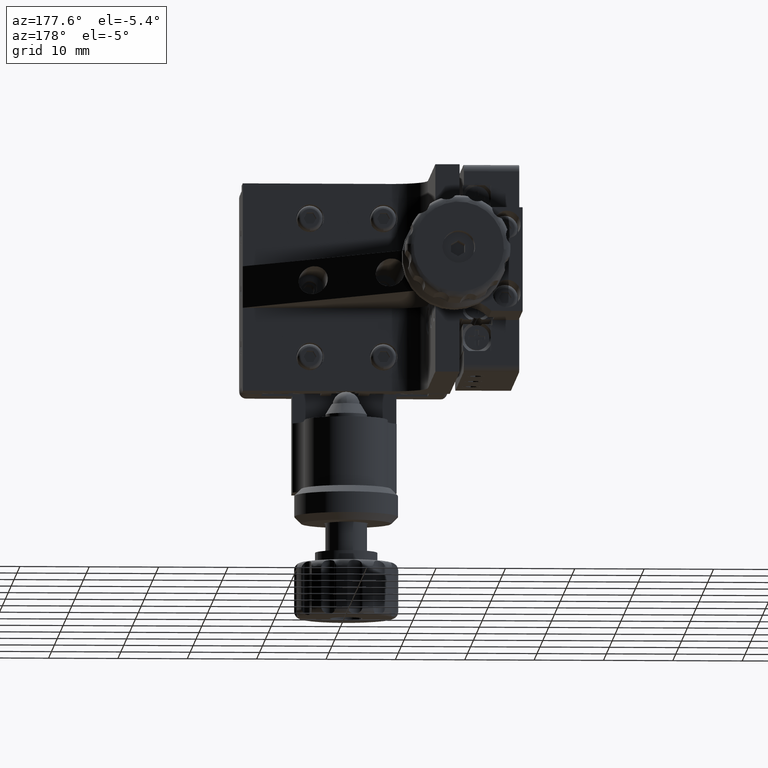
[diagram: clean part render]
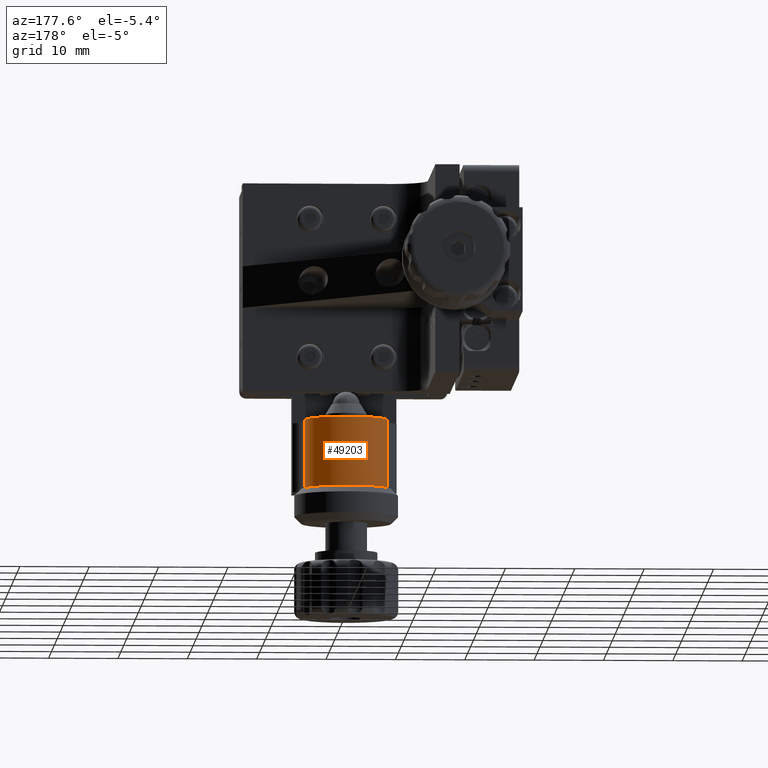
[diagram: same view with one face highlighted and labeled with its STEP entity id]
A machine part, auxiliary view. The second image highlights one B-rep face of the part: STEP entity #49203.
In plain terms, the highlighted cylindrical surface (partial cylindrical patch) has radius 6 mm, axis along (-0, 0, -1).
Its self-contained STEP definition (entity closure, byte-faithful):
#5658 = VECTOR ( 'NONE', #53852, 1000.000000000000000 ) ;
#5962 = AXIS2_PLACEMENT_3D ( 'NONE', #14754, #36778, #45200 ) ;
#9543 = LINE ( 'NONE', #48679, #51303 ) ;
#11301 = FACE_OUTER_BOUND ( 'NONE', #46914, .T. ) ;
#13722 = AXIS2_PLACEMENT_3D ( 'NONE', #56530, #29812, #34755 ) ;
#14525 = EDGE_CURVE ( 'NONE', #22231, #39726, #9543, .T. ) ;
#14754 = CARTESIAN_POINT ( 'NONE',  ( 19.00000000000001800, 5.499999999999987600, -19.00000000000000400 ) ) ;
#15623 = ORIENTED_EDGE ( 'NONE', *, *, #28627, .T. ) ;
#18852 = AXIS2_PLACEMENT_3D ( 'NONE', #25176, #20375, #20757 ) ;
#20375 = DIRECTION ( 'NONE',  ( 1.232595164407830900E-031, -7.511126783110220900E-032, 1.000000000000000000 ) ) ;
#20757 = DIRECTION ( 'NONE',  ( 1.000000000000000000, 0.0000000000000000000, 0.0000000000000000000 ) ) ;
#22231 = VERTEX_POINT ( 'NONE', #30908 ) ;
#22648 = DIRECTION ( 'NONE',  ( -1.232595164407830900E-031, 7.511126783110220900E-032, -1.000000000000000000 ) ) ;
#23143 = CARTESIAN_POINT ( 'NONE',  ( 25.00000000000001400, 5.499999999999987600, -29.00000000000000400 ) ) ;
#23894 = EDGE_CURVE ( 'NONE', #47771, #46848, #46706, .T. ) ;
#25176 = CARTESIAN_POINT ( 'NONE',  ( 19.00000000000001800, 5.499999999999987600, -29.00000000000000400 ) ) ;
#25664 = CARTESIAN_POINT ( 'NONE',  ( 13.00000000000002000, 5.499999999999987600, -29.00000000000000400 ) ) ;
#27627 = EDGE_CURVE ( 'NONE', #22231, #47771, #39961, .T. ) ;
#28627 = EDGE_CURVE ( 'NONE', #46848, #39726, #51422, .T. ) ;
#29812 = DIRECTION ( 'NONE',  ( -1.232595164407830900E-031, 7.511126783110220900E-032, -1.000000000000000000 ) ) ;
#30908 = CARTESIAN_POINT ( 'NONE',  ( 13.00000000000001800, 5.499999999999987600, -19.00000000000000400 ) ) ;
#31627 = ORIENTED_EDGE ( 'NONE', *, *, #14525, .F. ) ;
#32040 = ORIENTED_EDGE ( 'NONE', *, *, #27627, .T. ) ;
#34755 = DIRECTION ( 'NONE',  ( -1.000000000000000000, 0.0000000000000000000, 0.0000000000000000000 ) ) ;
#36034 = ORIENTED_EDGE ( 'NONE', *, *, #23894, .T. ) ;
#36778 = DIRECTION ( 'NONE',  ( -1.232595164407830900E-031, 7.511126783110220900E-032, -1.000000000000000000 ) ) ;
#39726 = VERTEX_POINT ( 'NONE', #25664 ) ;
#39961 = CIRCLE ( 'NONE', #5962, 5.999999999999998200 ) ;
#41167 = CARTESIAN_POINT ( 'NONE',  ( 25.00000000000001400, 5.499999999999987600, -19.00000000000000400 ) ) ;
#42102 = CYLINDRICAL_SURFACE ( 'NONE', #13722, 5.999999999999998200 ) ;
#45200 = DIRECTION ( 'NONE',  ( -1.000000000000000000, 0.0000000000000000000, 0.0000000000000000000 ) ) ;
#46706 = LINE ( 'NONE', #54042, #5658 ) ;
#46848 = VERTEX_POINT ( 'NONE', #23143 ) ;
#46914 = EDGE_LOOP ( 'NONE', ( #31627, #32040, #36034, #15623 ) ) ;
#47771 = VERTEX_POINT ( 'NONE', #41167 ) ;
#48679 = CARTESIAN_POINT ( 'NONE',  ( 13.00000000000002000, 5.499999999999987600, -15.00000000000000700 ) ) ;
#49203 = ADVANCED_FACE ( 'NONE', ( #11301 ), #42102, .T. ) ;
#51303 = VECTOR ( 'NONE', #22648, 1000.000000000000000 ) ;
#51422 = CIRCLE ( 'NONE', #18852, 5.999999999999998200 ) ;
#53852 = DIRECTION ( 'NONE',  ( -1.232595164407830900E-031, 7.511126783110220900E-032, -1.000000000000000000 ) ) ;
#54042 = CARTESIAN_POINT ( 'NONE',  ( 25.00000000000001400, 5.499999999999987600, -15.00000000000000700 ) ) ;
#56530 = CARTESIAN_POINT ( 'NONE',  ( 19.00000000000001800, 5.499999999999987600, -15.00000000000000700 ) ) ;